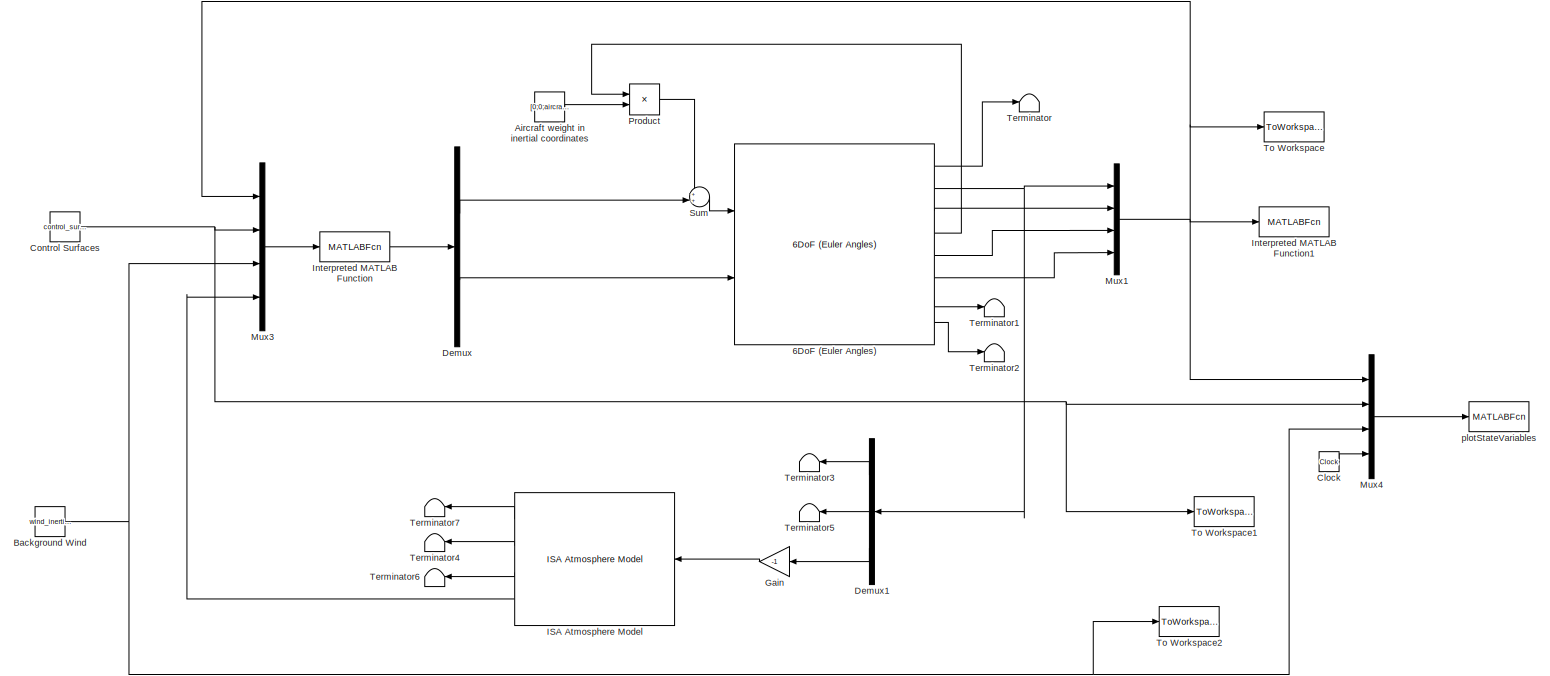
[diagram: root canvas - part 1/1, most of the canvas]
MODEL slx_551e872e06cf
KIND model
CONFIG AbsTol = auto
CONFIG FixedStep = auto
CONFIG MaxStep = auto
CONFIG MinStep = auto
CONFIG RelTol = 1e-3
CONFIG SampleTimeConstraint = Unconstrained
CONFIG Solver = ode45
CONFIG SolverMode = Auto
CONFIG SolverName = ode45
CONFIG StartTime = 0.0
CONFIG StopTime = 10000
BLOCK [Reference] 6DoF (Euler Angles)  REF=aerolibobsolete/6DoF (Euler Angles)
  Ports = [2, 8]
  SourceBlock = aerolibobsolete/6DoF (Euler Angles)
  SourceType = 6DoF EoM (Body Axis)
  Vm_0 = velocity_body
  eul_0 = euler_angles
  inertia = inertia_matrix
  inertia_e = eye(3)
  inertia_f = 2*eye(3)
  k_quat = 1.0
  mass_0 = aircraft_parameters.m
  mass_e = 0.5
  mass_f = 2.0
  mtype = Fixed
  pm_0 = omega_body
  rep = Euler Angles
  units = Metric (MKS)
  xme_0 = position_inertial
BLOCK [Constant] Aircraft weight in inertial coordinates
  Value = [0;0;aircraft_parameters.W]
BLOCK [Constant] Background Wind
  Value = wind_inertial
BLOCK [Clock] Clock
BLOCK [Constant] Control Surfaces
  Value = control_surfaces_constant
BLOCK [Demux] Demux
  DisplayOption = bar
  Outputs = 2
  Ports = [1, 2]
BLOCK [Demux] Demux1
  DisplayOption = bar
  Outputs = 3
  Ports = [1, 3]
BLOCK [Gain] Gain
  Gain = -1
  OutDataTypeStr = Inherit: Inherit via internal rule
  ParamDataTypeStr = Inherit: Inherit via internal rule
  SaturateOnIntegerOverflow = off
BLOCK [Reference] ISA Atmosphere Model  REF=aerolibatmos2/ISA Atmosphere Model
  L = 0.0065
  P0 = 101325
  Ports = [1, 4]
  R = 287.0531
  SourceBlock = aerolibatmos2/ISA Atmosphere Model
  SourceType = International Standard Atmosphere Model
  T0 = 288.15
  custom = off
  g = 9.80665
  gamma = 1.4
  h0 = 0
  h_strat = 20000
  h_trop = 11000
  rho0 = 1.225
BLOCK [MATLABFcn] Interpreted MATLAB Function
  MATLABFcn = S_AeroForcesAndMoments(u, aircraft_parameters)
  OutputDimensions = 6
  Ports = [1, 1]
BLOCK [MATLABFcn] Interpreted MATLAB Function1
  Commented = on
  MATLABFcn = drawAircraft(u,pts)
  OutputDimensions = 0
  Ports = [1]
BLOCK [Mux] Mux1
  DisplayOption = bar
  Ports = [4, 1]
BLOCK [Mux] Mux3
  DisplayOption = bar
  Ports = [4, 1]
BLOCK [Mux] Mux4
  DisplayOption = bar
  Ports = [4, 1]
BLOCK [Product] Product
  InputSameDT = off
  Multiplication = Matrix(*)
  OutDataTypeStr = Inherit: Inherit via internal rule
  Ports = [2, 1]
  SaturateOnIntegerOverflow = off
BLOCK [Sum] Sum
  IconShape = round
  InputSameDT = off
  Inputs = ++|
  OutDataTypeStr = Inherit: Inherit via internal rule
  Ports = [2, 1]
  SaturateOnIntegerOverflow = off
BLOCK [Terminator] Terminator
BLOCK [Terminator] Terminator1
BLOCK [Terminator] Terminator2
BLOCK [Terminator] Terminator3
BLOCK [Terminator] Terminator4
BLOCK [Terminator] Terminator5
BLOCK [Terminator] Terminator6
BLOCK [Terminator] Terminator7
BLOCK [ToWorkspace] To Workspace
  MaxDataPoints = inf
  Ports = [1]
  SampleTime = -1
  SaveFormat = Timeseries
  VariableName = aircraft_state_array
BLOCK [ToWorkspace] To Workspace1
  MaxDataPoints = inf
  Ports = [1]
  SampleTime = -1
  SaveFormat = Timeseries
  VariableName = control_input_array
BLOCK [ToWorkspace] To Workspace2
  MaxDataPoints = inf
  Ports = [1]
  SampleTime = -1
  SaveFormat = Timeseries
  VariableName = background_wind_array
BLOCK [MATLABFcn] plotStateVariables
  Commented = on
  MATLABFcn = PlotStateVariables(u)
  OutputDimensions = 0
  Ports = [1]
  SampleTime = .1
LINE 6DoF (Euler Angles):1 -> Terminator:1
NET 6DoF (Euler Angles):2 -> Demux1:1, Mux1:1
LINE 6DoF (Euler Angles):3 -> Mux1:2
LINE 6DoF (Euler Angles):4 -> Product:1
LINE 6DoF (Euler Angles):5 -> Mux1:3
LINE 6DoF (Euler Angles):6 -> Mux1:4
LINE 6DoF (Euler Angles):7 -> Terminator1:1
LINE 6DoF (Euler Angles):8 -> Terminator2:1
LINE Aircraft weight in inertial coordinates:1 -> Product:2
NET Background Wind:1 -> Mux3:3, Mux4:3, To Workspace2:1
LINE Clock:1 -> Mux4:4
NET Control Surfaces:1 -> Mux3:2, Mux4:2, To Workspace1:1
LINE Demux1:1 -> Terminator3:1
LINE Demux1:2 -> Terminator5:1
LINE Demux1:3 -> Gain:1
LINE Demux:1 -> Sum:2
LINE Demux:2 -> 6DoF (Euler Angles):2
LINE Gain:1 -> ISA Atmosphere Model:1
LINE ISA Atmosphere Model:1 -> Terminator7:1
LINE ISA Atmosphere Model:2 -> Terminator4:1
LINE ISA Atmosphere Model:3 -> Terminator6:1
LINE ISA Atmosphere Model:4 -> Mux3:4
LINE Interpreted MATLAB Function:1 -> Demux:1
NET Mux1:1 -> Interpreted MATLAB Function1:1, Mux3:1, Mux4:1, To Workspace:1
LINE Mux3:1 -> Interpreted MATLAB Function:1
LINE Mux4:1 -> plotStateVariables:1
LINE Product:1 -> Sum:1
LINE Sum:1 -> 6DoF (Euler Angles):1
note: NET lines group one-source signal fan-out (src -> all destinations, sorted); 1:1 wires keep LINE
